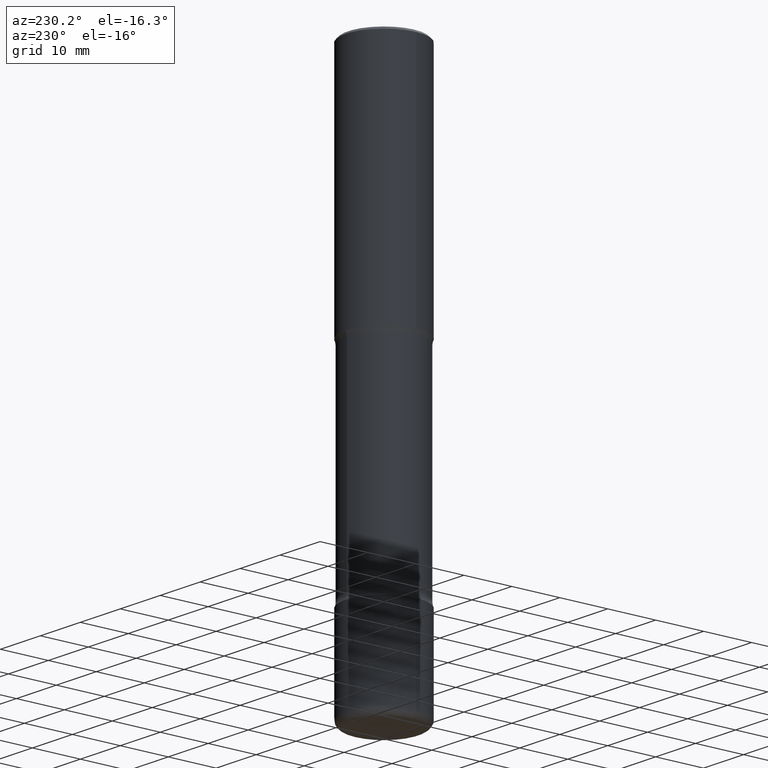
[diagram: clean part render]
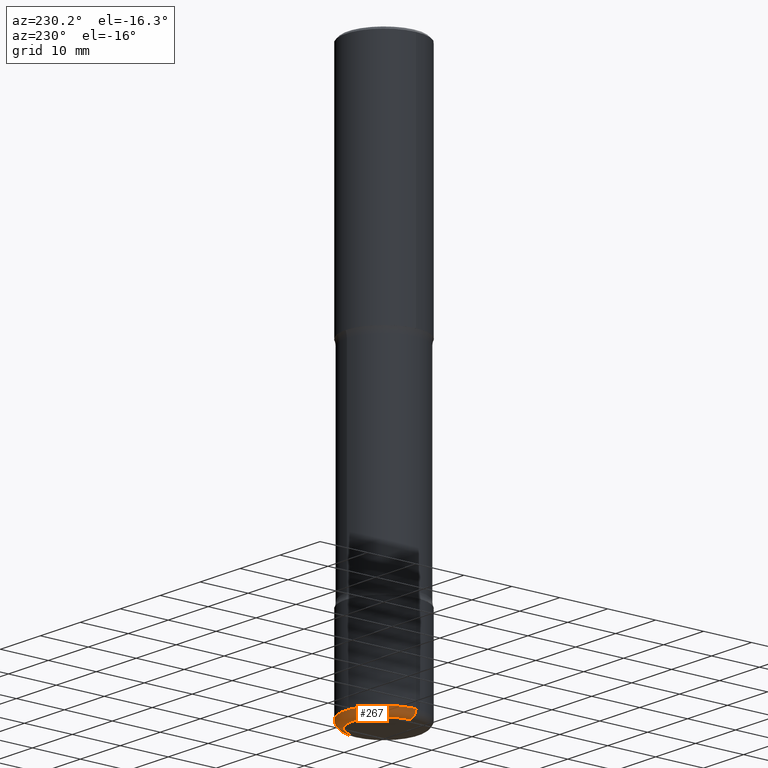
[diagram: same view with one face highlighted and labeled with its STEP entity id]
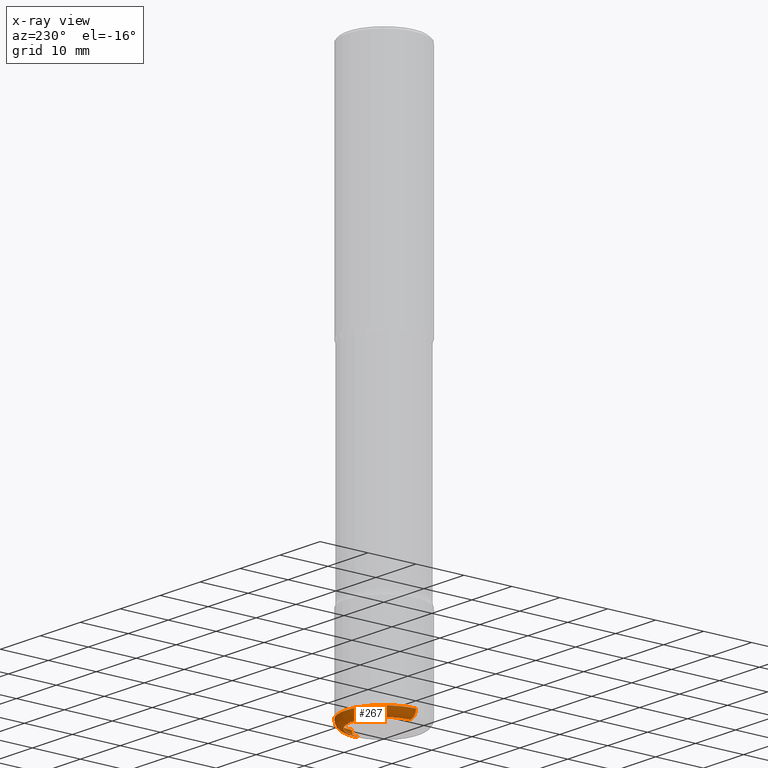
[diagram: x-ray of the same camera — body ghosted, the highlighted face saturated]
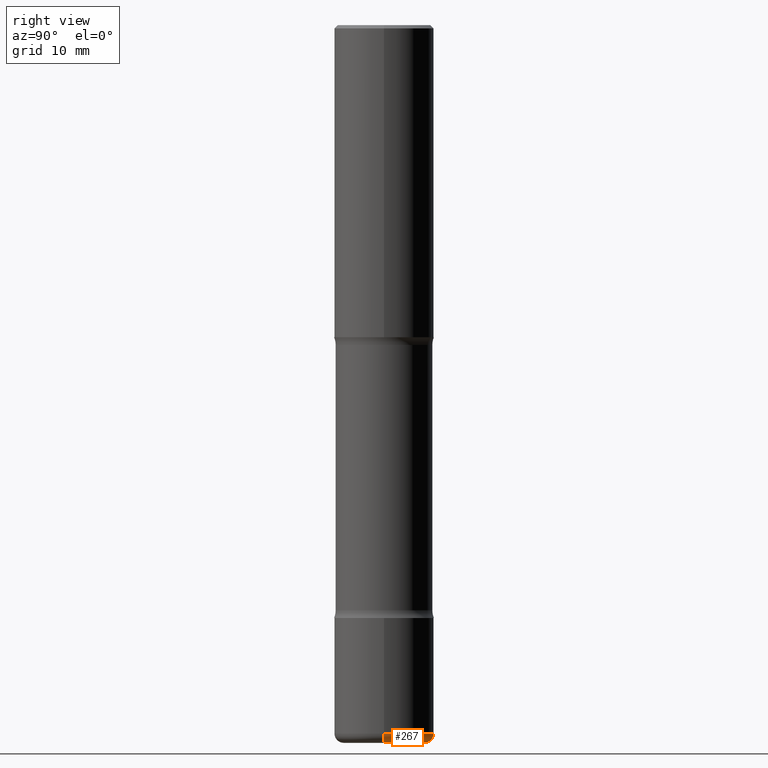
[diagram: same view with one face highlighted and labeled with its STEP entity id]
A machine part, auxiliary view. The second image highlights one B-rep face of the part: STEP entity #267.
The next image is the same camera in x-ray: the body ghosted, the highlighted face saturated — about 0% of this face is hidden behind the body in this view.
A second angle (right view) of the same face is appended — the face is thin or edge-on in the first view.
In plain terms, the highlighted toroidal blend (fillet) surface has major radius 6.4986 mm and minor (blend) radius 1.5011 mm.
Its self-contained STEP definition (entity closure, byte-faithful):
#16 = DIRECTION ( 'NONE',  ( 1.000000000000000000, -6.982962677686273021E-15, 0.000000000000000000 ) ) ;
#19 = CARTESIAN_POINT ( 'NONE',  ( 0.2558500000000002439, -1.759462191083226085E-14, -4.527600000000000513 ) ) ;
#48 = DIRECTION ( 'NONE',  ( 1.000000000000000000, -6.982962677686265133E-15, 4.883557194083112901E-29 ) ) ;
#53 = DIRECTION ( 'NONE',  ( -1.000000000000000000, 7.105427357600997914E-15, 0.000000000000000000 ) ) ;
#56 = CIRCLE ( 'NONE', #488, 0.05910000000000022874 ) ;
#60 = EDGE_CURVE ( 'NONE', #71, #162, #418, .T. ) ;
#67 = CARTESIAN_POINT ( 'NONE',  ( -0.2558500000000002439, -1.367696866832408364E-14, -4.527600000000000513 ) ) ;
#71 = VERTEX_POINT ( 'NONE', #19 ) ;
#79 = VERTEX_POINT ( 'NONE', #312 ) ;
#113 = CARTESIAN_POINT ( 'NONE',  ( -0.2558500000000002439, -1.378376077317837622E-14, -4.468499999999999694 ) ) ;
#118 = ORIENTED_EDGE ( 'NONE', *, *, #148, .T. ) ;
#130 = CARTESIAN_POINT ( 'NONE',  ( 1.092757736043828165E-28, -1.560168436262059349E-14, -4.468499999999999694 ) ) ;
#148 = EDGE_CURVE ( 'NONE', #162, #79, #550, .T. ) ;
#162 = VERTEX_POINT ( 'NONE', #67 ) ;
#192 = CARTESIAN_POINT ( 'NONE',  ( 0.3149500000000003963, -1.780096845795788810E-14, -4.468499999999999694 ) ) ;
#204 = EDGE_LOOP ( 'NONE', ( #294, #118, #519, #215 ) ) ;
#215 = ORIENTED_EDGE ( 'NONE', *, *, #313, .F. ) ;
#224 = DIRECTION ( 'NONE',  ( 1.000000000000000000, -6.982962677686268288E-15, 0.000000000000000000 ) ) ;
#256 = CARTESIAN_POINT ( 'NONE',  ( 0.2558500000000002439, -1.738827536370662730E-14, -4.468499999999999694 ) ) ;
#267 = ADVANCED_FACE ( 'NONE', ( #413 ), #275, .T. ) ;
#275 = TOROIDAL_SURFACE ( 'NONE', #321, 0.2558500000000002439, 0.05910000000000024956 ) ;
#288 = DIRECTION ( 'NONE',  ( 1.000000000000000000, -6.982962677686269866E-15, 0.000000000000000000 ) ) ;
#294 = ORIENTED_EDGE ( 'NONE', *, *, #60, .T. ) ;
#312 = CARTESIAN_POINT ( 'NONE',  ( -0.3149500000000003963, -1.336383001634415593E-14, -4.468499999999999694 ) ) ;
#313 = EDGE_CURVE ( 'NONE', #71, #552, #56, .T. ) ;
#321 = AXIS2_PLACEMENT_3D ( 'NONE', #130, #554, #48 ) ;
#342 = DIRECTION ( 'NONE',  ( -6.982962677686266711E-15, -1.000000000000000000, 3.491481338843145583E-15 ) ) ;
#368 = AXIS2_PLACEMENT_3D ( 'NONE', #427, #423, #288 ) ;
#374 = AXIS2_PLACEMENT_3D ( 'NONE', #113, #417, #53 ) ;
#408 = EDGE_CURVE ( 'NONE', #552, #79, #540, .T. ) ;
#413 = FACE_OUTER_BOUND ( 'NONE', #204, .T. ) ;
#417 = DIRECTION ( 'NONE',  ( 7.105427357601001859E-15, 1.000000000000000000, -3.491481338843145583E-15 ) ) ;
#418 = CIRCLE ( 'NONE', #453, 0.2558500000000002439 ) ;
#423 = DIRECTION ( 'NONE',  ( -2.445468806185136597E-29, 3.491481338843145583E-15, 1.000000000000000000 ) ) ;
#427 = CARTESIAN_POINT ( 'NONE',  ( 1.092757736043828165E-28, -1.560168436262059349E-14, -4.468499999999999694 ) ) ;
#446 = CARTESIAN_POINT ( 'NONE',  ( 1.107210456688382522E-28, -1.580803090974622705E-14, -4.527600000000000513 ) ) ;
#453 = AXIS2_PLACEMENT_3D ( 'NONE', #446, #487, #16 ) ;
#487 = DIRECTION ( 'NONE',  ( -2.445468806185136597E-29, 3.491481338843145583E-15, 1.000000000000000000 ) ) ;
#488 = AXIS2_PLACEMENT_3D ( 'NONE', #256, #342, #224 ) ;
#519 = ORIENTED_EDGE ( 'NONE', *, *, #408, .F. ) ;
#540 = CIRCLE ( 'NONE', #368, 0.3149500000000002853 ) ;
#550 = CIRCLE ( 'NONE', #374, 0.05910000000000022874 ) ;
#552 = VERTEX_POINT ( 'NONE', #192 ) ;
#554 = DIRECTION ( 'NONE',  ( -2.445468806185136597E-29, 3.491481338843145583E-15, 1.000000000000000000 ) ) ;